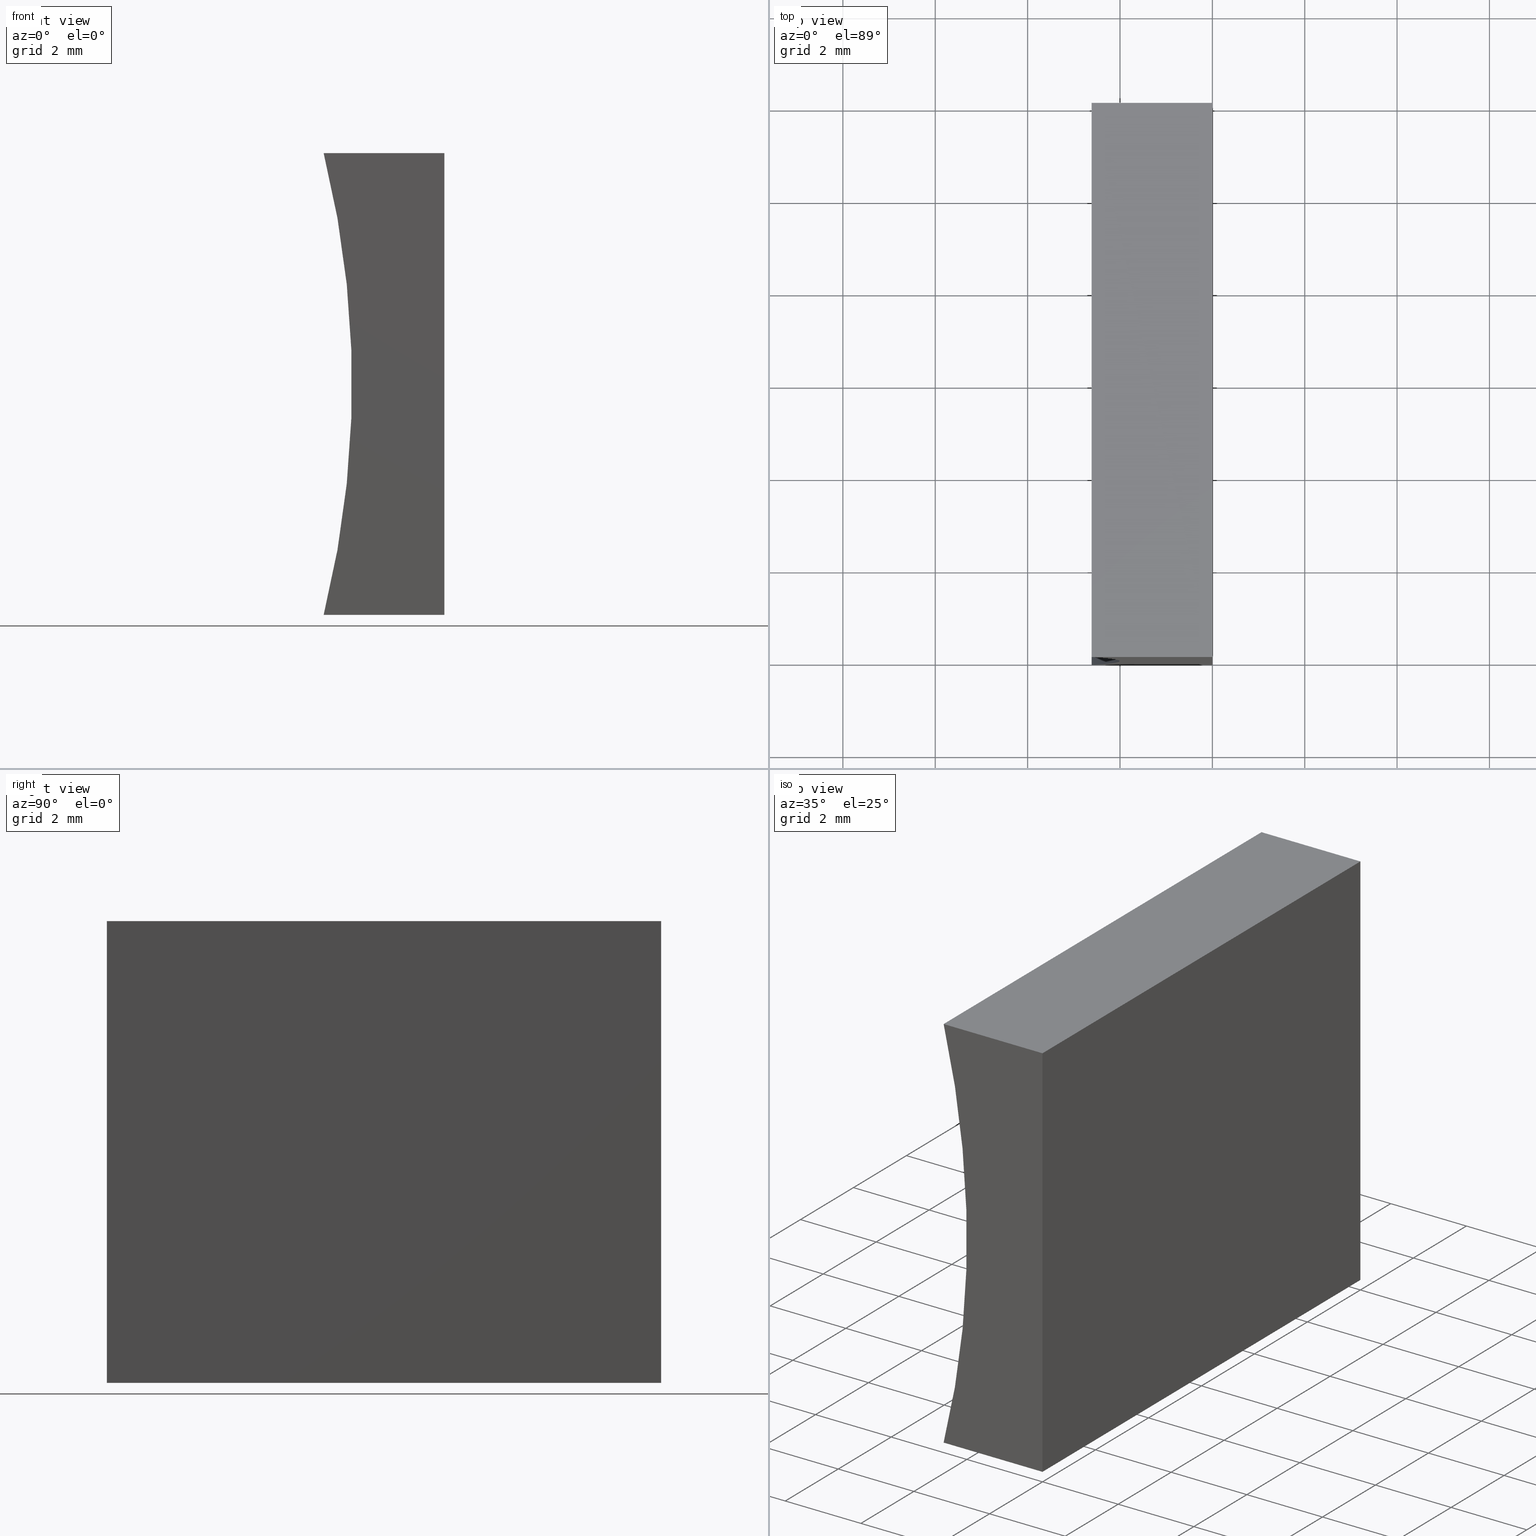
[diagram: canonical four-view strip — front | top / right | iso, engineering-drawing reading convention]
A machine part, canonical four-view strip (front | top / right | iso — engineering-drawing reading convention). The complete STEP part file that produces these views, byte-faithful:
ISO-10303-21;
HEADER;
FILE_DESCRIPTION (( 'STEP AP214' ),
    '1' );
FILE_NAME ('155341.STEP',
    '2019-06-28T02:17:58',
    ( 'user' ),
    ( '΢���й�' ),
    'SwSTEP 2.0',
    'SolidWorks 2016',
    '' );
FILE_SCHEMA (( 'AUTOMOTIVE_DESIGN' ));
ENDSEC;

DATA;
#1 = VECTOR ( 'NONE', #90, 1000.000000000000000 ) ;
#2 = PRODUCT_RELATED_PRODUCT_CATEGORY ( 'part', '', ( #79 ) ) ;
#3 = EDGE_CURVE ( 'NONE', #128, #109, #169, .T. ) ;
#4 = CARTESIAN_POINT ( 'NONE',  ( 6.123233995736766300E-016, 12.00000000000000000, 10.00000000000000000 ) ) ;
#5 = DIRECTION ( 'NONE',  ( -0.0000000000000000000, -1.000000000000000000, -0.0000000000000000000 ) ) ;
#6 = LINE ( 'NONE', #54, #62 ) ;
#7 = SURFACE_STYLE_USAGE ( .BOTH. , #195 ) ;
#8 =( NAMED_UNIT ( * ) PLANE_ANGLE_UNIT ( ) SI_UNIT ( $, .RADIAN. ) );
#9 = EDGE_LOOP ( 'NONE', ( #35, #116, #108, #13 ) ) ;
#10 =( LENGTH_UNIT ( ) NAMED_UNIT ( * ) SI_UNIT ( .MILLI., .METRE. ) );
#11 = ADVANCED_FACE ( 'NONE', ( #166 ), #204, .F. ) ;
#12 = VECTOR ( 'NONE', #73, 1000.000000000000000 ) ;
#13 = ORIENTED_EDGE ( 'NONE', *, *, #88, .F. ) ;
#14 = ORIENTED_EDGE ( 'NONE', *, *, #136, .T. ) ;
#15 = CARTESIAN_POINT ( 'NONE',  ( 6.123233995736766300E-016, 12.00000000000000000, 10.00000000000000000 ) ) ;
#16 = UNCERTAINTY_MEASURE_WITH_UNIT (LENGTH_MEASURE( 1.000000000000000100E-005 ), #115, 'distance_accuracy_value', 'NONE');
#17 = CARTESIAN_POINT ( 'NONE',  ( 0.0000000000000000000, 12.00000000000000000, 0.0000000000000000000 ) ) ;
#18 = VECTOR ( 'NONE', #194, 1000.000000000000000 ) ;
#19 = PRODUCT_CONTEXT ( 'NONE', #60, 'mechanical' ) ;
#20 = SURFACE_STYLE_USAGE ( .BOTH. , #24 ) ;
#21 = AXIS2_PLACEMENT_3D ( 'NONE', #112, #31, #145 ) ;
#22 = VECTOR ( 'NONE', #161, 1000.000000000000000 ) ;
#23 = ADVANCED_FACE ( 'NONE', ( #37 ), #110, .F. ) ;
#24 = SURFACE_SIDE_STYLE ('',( #104 ) ) ;
#25 = ORIENTED_EDGE ( 'NONE', *, *, #93, .F. ) ;
#26 = VECTOR ( 'NONE', #181, 1000.000000000000000 ) ;
#27 = MECHANICAL_DESIGN_GEOMETRIC_PRESENTATION_REPRESENTATION (  '', ( #148 ), #36 ) ;
#28 = CARTESIAN_POINT ( 'NONE',  ( 6.123233995736766300E-016, 0.0000000000000000000, 10.00000000000000000 ) ) ;
#29 = DIRECTION ( 'NONE',  ( 0.0000000000000000000, 0.0000000000000000000, 1.000000000000000000 ) ) ;
#30 = EDGE_CURVE ( 'NONE', #64, #59, #121, .T. ) ;
#31 = DIRECTION ( 'NONE',  ( 0.0000000000000000000, -0.0000000000000000000, 1.000000000000000000 ) ) ;
#32 = ORIENTED_EDGE ( 'NONE', *, *, #114, .T. ) ;
#33 = DIRECTION ( 'NONE',  ( -1.000000000000000000, 0.0000000000000000000, 0.0000000000000000000 ) ) ;
#34 = CARTESIAN_POINT ( 'NONE',  ( 0.0000000000000000000, 12.00000000000000000, 0.0000000000000000000 ) ) ;
#35 = ORIENTED_EDGE ( 'NONE', *, *, #30, .F. ) ;
#36 =( GEOMETRIC_REPRESENTATION_CONTEXT ( 3 ) GLOBAL_UNCERTAINTY_ASSIGNED_CONTEXT ( ( #190 ) ) GLOBAL_UNIT_ASSIGNED_CONTEXT ( ( #130, #77, #200 ) ) REPRESENTATION_CONTEXT ( 'NONE', 'WORKASPACE' ) );
#37 = FACE_OUTER_BOUND ( 'NONE', #179, .T. ) ;
#38 = ORIENTED_EDGE ( 'NONE', *, *, #58, .T. ) ;
#39 = SURFACE_STYLE_FILL_AREA ( #144 ) ;
#40 = ORIENTED_EDGE ( 'NONE', *, *, #107, .T. ) ;
#41 = AXIS2_PLACEMENT_3D ( 'NONE', #132, #184, #56 ) ;
#42 = CARTESIAN_POINT ( 'NONE',  ( 0.0000000000000000000, 0.0000000000000000000, 0.0000000000000000000 ) ) ;
#43 = ORIENTED_EDGE ( 'NONE', *, *, #188, .F. ) ;
#44 = AXIS2_PLACEMENT_3D ( 'NONE', #163, #99, #101 ) ;
#45 = DIRECTION ( 'NONE',  ( 0.0000000000000000000, 1.000000000000000000, 0.0000000000000000000 ) ) ;
#46 = LINE ( 'NONE', #57, #26 ) ;
#47 = DIRECTION ( 'NONE',  ( 1.000000000000000000, -0.0000000000000000000, -0.0000000000000000000 ) ) ;
#48 = DIRECTION ( 'NONE',  ( 1.000000000000000000, -0.0000000000000000000, -0.0000000000000000000 ) ) ;
#49 = ORIENTED_EDGE ( 'NONE', *, *, #122, .F. ) ;
#50 = CYLINDRICAL_SURFACE ( 'NONE', #44, 20.68000000000000000 ) ;
#51 = LINE ( 'NONE', #164, #1 ) ;
#52 = EDGE_CURVE ( 'NONE', #111, #64, #197, .T. ) ;
#53 = SHAPE_DEFINITION_REPRESENTATION ( #155, #126 ) ;
#54 = CARTESIAN_POINT ( 'NONE',  ( 6.123233995736766300E-016, 12.00000000000000000, 10.00000000000000000 ) ) ;
#55 = PLANE ( 'NONE',  #21 ) ;
#56 = DIRECTION ( 'NONE',  ( 0.0000000000000000000, 0.0000000000000000000, 1.000000000000000000 ) ) ;
#57 = CARTESIAN_POINT ( 'NONE',  ( 6.123233995736766300E-016, 12.00000000000000000, 10.00000000000000000 ) ) ;
#58 = EDGE_CURVE ( 'NONE', #109, #64, #85, .T. ) ;
#59 = VERTEX_POINT ( 'NONE', #196 ) ;
#60 = APPLICATION_CONTEXT ( 'automotive_design' ) ;
#61 = VECTOR ( 'NONE', #33, 1000.000000000000000 ) ;
#62 = VECTOR ( 'NONE', #47, 1000.000000000000000 ) ;
#63 = AXIS2_PLACEMENT_3D ( 'NONE', #177, #5, #29 ) ;
#64 = VERTEX_POINT ( 'NONE', #78 ) ;
#65 = LINE ( 'NONE', #34, #12 ) ;
#66 = ORIENTED_EDGE ( 'NONE', *, *, #136, .F. ) ;
#67 = DIRECTION ( 'NONE',  ( 0.0000000000000000000, -0.0000000000000000000, 1.000000000000000000 ) ) ;
#68 = AXIS2_PLACEMENT_3D ( 'NONE', #198, #193, #67 ) ;
#69 = CARTESIAN_POINT ( 'NONE',  ( 0.0000000000000000000, 12.00000000000000000, 0.0000000000000000000 ) ) ;
#70 = DIRECTION ( 'NONE',  ( -1.000000000000000000, 0.0000000000000000000, -0.0000000000000000000 ) ) ;
#71 = VECTOR ( 'NONE', #48, 1000.000000000000000 ) ;
#72 = FACE_OUTER_BOUND ( 'NONE', #146, .T. ) ;
#73 = DIRECTION ( 'NONE',  ( -6.123233995736766000E-017, -0.0000000000000000000, -1.000000000000000000 ) ) ;
#74 = EDGE_CURVE ( 'NONE', #186, #128, #51, .T. ) ;
#75 = CARTESIAN_POINT ( 'NONE',  ( 0.0000000000000000000, 12.00000000000000000, 0.0000000000000000000 ) ) ;
#76 = ORIENTED_EDGE ( 'NONE', *, *, #107, .F. ) ;
#77 =( NAMED_UNIT ( * ) PLANE_ANGLE_UNIT ( ) SI_UNIT ( $, .RADIAN. ) );
#78 = CARTESIAN_POINT ( 'NONE',  ( 0.0000000000000000000, 0.0000000000000000000, 0.0000000000000000000 ) ) ;
#79 = PRODUCT ( '155341', '155341', '', ( #19 ) ) ;
#80 = ADVANCED_FACE ( 'NONE', ( #124 ), #50, .F. ) ;
#81 = DIRECTION ( 'NONE',  ( -1.000000000000000000, 0.0000000000000000000, 6.123233995736766000E-017 ) ) ;
#82 = ORIENTED_EDGE ( 'NONE', *, *, #3, .T. ) ;
#83 = FILL_AREA_STYLE_COLOUR ( '', #141 ) ;
#84 = VERTEX_POINT ( 'NONE', #92 ) ;
#85 = LINE ( 'NONE', #42, #174 ) ;
#86 =( GEOMETRIC_REPRESENTATION_CONTEXT ( 3 ) GLOBAL_UNCERTAINTY_ASSIGNED_CONTEXT ( ( #160 ) ) GLOBAL_UNIT_ASSIGNED_CONTEXT ( ( #10, #97, #117 ) ) REPRESENTATION_CONTEXT ( 'NONE', 'WORKASPACE' ) );
#87 = FACE_OUTER_BOUND ( 'NONE', #9, .T. ) ;
#88 = EDGE_CURVE ( 'NONE', #59, #128, #134, .T. ) ;
#89 = ORIENTED_EDGE ( 'NONE', *, *, #52, .F. ) ;
#90 = DIRECTION ( 'NONE',  ( -0.0000000000000000000, -1.000000000000000000, -0.0000000000000000000 ) ) ;
#91 = CARTESIAN_POINT ( 'NONE',  ( 0.0000000000000000000, 0.0000000000000000000, 0.0000000000000000000 ) ) ;
#92 = CARTESIAN_POINT ( 'NONE',  ( -2.613550388770813400, 12.00000000000000000, 0.0000000000000000000 ) ) ;
#93 = EDGE_CURVE ( 'NONE', #111, #84, #129, .T. ) ;
#94 = DIRECTION ( 'NONE',  ( 6.123233995736766000E-017, 0.0000000000000000000, 1.000000000000000000 ) ) ;
#95 = ORIENTED_EDGE ( 'NONE', *, *, #88, .T. ) ;
#96 = DIRECTION ( 'NONE',  ( 1.000000000000000000, 0.0000000000000000000, 0.0000000000000000000 ) ) ;
#97 =( NAMED_UNIT ( * ) PLANE_ANGLE_UNIT ( ) SI_UNIT ( $, .RADIAN. ) );
#98 = ADVANCED_FACE ( 'NONE', ( #72 ), #55, .F. ) ;
#99 = DIRECTION ( 'NONE',  ( -0.0000000000000000000, -1.000000000000000000, -0.0000000000000000000 ) ) ;
#100 = AXIS2_PLACEMENT_3D ( 'NONE', #180, #45, #125 ) ;
#101 = DIRECTION ( 'NONE',  ( 0.0000000000000000000, 0.0000000000000000000, -1.000000000000000000 ) ) ;
#102 = DIRECTION ( 'NONE',  ( 0.0000000000000000000, 0.0000000000000000000, -1.000000000000000000 ) ) ;
#103 = EDGE_LOOP ( 'NONE', ( #82, #157, #43, #133 ) ) ;
#104 = SURFACE_STYLE_FILL_AREA ( #203 ) ;
#105 = ORIENTED_EDGE ( 'NONE', *, *, #188, .T. ) ;
#106 = MANIFOLD_SOLID_BREP ( '͹̨-����1', #149 ) ;
#107 = EDGE_CURVE ( 'NONE', #84, #59, #172, .T. ) ;
#108 = ORIENTED_EDGE ( 'NONE', *, *, #3, .F. ) ;
#109 = VERTEX_POINT ( 'NONE', #28 ) ;
#110 = PLANE ( 'NONE',  #140 ) ;
#111 = VERTEX_POINT ( 'NONE', #75 ) ;
#112 = CARTESIAN_POINT ( 'NONE',  ( 0.0000000000000000000, 12.00000000000000000, 0.0000000000000000000 ) ) ;
#113 = APPLICATION_CONTEXT ( 'automotive_design' ) ;
#114 = EDGE_CURVE ( 'NONE', #173, #109, #46, .T. ) ;
#115 =( LENGTH_UNIT ( ) NAMED_UNIT ( * ) SI_UNIT ( .MILLI., .METRE. ) );
#116 = ORIENTED_EDGE ( 'NONE', *, *, #58, .F. ) ;
#117 =( NAMED_UNIT ( * ) SI_UNIT ( $, .STERADIAN. ) SOLID_ANGLE_UNIT ( ) );
#118 = CARTESIAN_POINT ( 'NONE',  ( 6.123233995736766300E-016, 0.0000000000000000000, 10.00000000000000000 ) ) ;
#119 = VECTOR ( 'NONE', #165, 1000.000000000000000 ) ;
#120 = STYLED_ITEM ( 'NONE', ( #158 ), #126 ) ;
#121 = LINE ( 'NONE', #91, #61 ) ;
#122 = EDGE_CURVE ( 'NONE', #84, #186, #154, .T. ) ;
#123 = ORIENTED_EDGE ( 'NONE', *, *, #74, .F. ) ;
#124 = FACE_OUTER_BOUND ( 'NONE', #189, .T. ) ;
#125 = DIRECTION ( 'NONE',  ( 0.0000000000000000000, -0.0000000000000000000, 1.000000000000000000 ) ) ;
#126 = ADVANCED_BREP_SHAPE_REPRESENTATION ( '155341', ( #106, #175 ), #86 ) ;
#127 = CARTESIAN_POINT ( 'NONE',  ( -2.613550388770809400, 12.00000000000000000, 10.00000000000000000 ) ) ;
#128 = VERTEX_POINT ( 'NONE', #147 ) ;
#129 = LINE ( 'NONE', #69, #22 ) ;
#130 =( LENGTH_UNIT ( ) NAMED_UNIT ( * ) SI_UNIT ( .MILLI., .METRE. ) );
#131 = CARTESIAN_POINT ( 'NONE',  ( -2.613550388770813400, 12.00000000000000000, 0.0000000000000000000 ) ) ;
#132 = CARTESIAN_POINT ( 'NONE',  ( -22.68000000000000000, 12.00000000000000000, 5.000000000000001800 ) ) ;
#133 = ORIENTED_EDGE ( 'NONE', *, *, #74, .T. ) ;
#134 = CIRCLE ( 'NONE', #63, 20.68000000000000000 ) ;
#135 = APPLICATION_PROTOCOL_DEFINITION ( 'draft international standard', 'automotive_design', 1998, #60 ) ;
#136 = EDGE_CURVE ( 'NONE', #173, #111, #65, .T. ) ;
#137 = CARTESIAN_POINT ( 'NONE',  ( 0.0000000000000000000, 0.0000000000000000000, 0.0000000000000000000 ) ) ;
#138 = PRESENTATION_LAYER_ASSIGNMENT (  '', '', ( #120 ) ) ;
#139 = ORIENTED_EDGE ( 'NONE', *, *, #93, .T. ) ;
#140 = AXIS2_PLACEMENT_3D ( 'NONE', #162, #81, #94 ) ;
#141 = COLOUR_RGB ( '',1.000000000000000000, 1.000000000000000000, 1.000000000000000000 ) ;
#142 = MECHANICAL_DESIGN_GEOMETRIC_PRESENTATION_REPRESENTATION (  '', ( #120 ), #156 ) ;
#143 = FILL_AREA_STYLE_COLOUR ( '', #150 ) ;
#144 = FILL_AREA_STYLE ('',( #143 ) ) ;
#145 = DIRECTION ( 'NONE',  ( 1.000000000000000000, 0.0000000000000000000, -0.0000000000000000000 ) ) ;
#146 = EDGE_LOOP ( 'NONE', ( #159, #76, #25, #153 ) ) ;
#147 = CARTESIAN_POINT ( 'NONE',  ( -2.613550388770809400, 0.0000000000000000000, 10.00000000000000000 ) ) ;
#148 = STYLED_ITEM ( 'NONE', ( #202 ), #106 ) ;
#149 = CLOSED_SHELL ( 'NONE', ( #98, #80, #11, #23, #152, #168 ) ) ;
#150 = COLOUR_RGB ( '',1.000000000000000000, 1.000000000000000000, 1.000000000000000000 ) ;
#151 = PLANE ( 'NONE',  #68 ) ;
#152 = ADVANCED_FACE ( 'NONE', ( #170 ), #151, .T. ) ;
#153 = ORIENTED_EDGE ( 'NONE', *, *, #52, .T. ) ;
#154 = CIRCLE ( 'NONE', #41, 20.68000000000000000 ) ;
#155 = PRODUCT_DEFINITION_SHAPE ( 'NONE', 'NONE',  #187 ) ;
#156 =( GEOMETRIC_REPRESENTATION_CONTEXT ( 3 ) GLOBAL_UNCERTAINTY_ASSIGNED_CONTEXT ( ( #16 ) ) GLOBAL_UNIT_ASSIGNED_CONTEXT ( ( #115, #8, #182 ) ) REPRESENTATION_CONTEXT ( 'NONE', 'WORKASPACE' ) );
#157 = ORIENTED_EDGE ( 'NONE', *, *, #114, .F. ) ;
#158 = PRESENTATION_STYLE_ASSIGNMENT (( #20 ) ) ;
#159 = ORIENTED_EDGE ( 'NONE', *, *, #30, .T. ) ;
#160 = UNCERTAINTY_MEASURE_WITH_UNIT (LENGTH_MEASURE( 1.000000000000000100E-005 ), #10, 'distance_accuracy_value', 'NONE');
#161 = DIRECTION ( 'NONE',  ( -1.000000000000000000, 0.0000000000000000000, 0.0000000000000000000 ) ) ;
#162 = CARTESIAN_POINT ( 'NONE',  ( 0.0000000000000000000, 12.00000000000000000, 0.0000000000000000000 ) ) ;
#163 = CARTESIAN_POINT ( 'NONE',  ( -22.68000000000000000, 12.00000000000000000, 5.000000000000001800 ) ) ;
#164 = CARTESIAN_POINT ( 'NONE',  ( -2.613550388770809400, 12.00000000000000000, 10.00000000000000000 ) ) ;
#165 = DIRECTION ( 'NONE',  ( -0.0000000000000000000, -1.000000000000000000, -0.0000000000000000000 ) ) ;
#166 = FACE_OUTER_BOUND ( 'NONE', #103, .T. ) ;
#167 = DIRECTION ( 'NONE',  ( 0.0000000000000000000, 0.0000000000000000000, 1.000000000000000000 ) ) ;
#168 = ADVANCED_FACE ( 'NONE', ( #87 ), #176, .F. ) ;
#169 = LINE ( 'NONE', #118, #71 ) ;
#170 = FACE_OUTER_BOUND ( 'NONE', #192, .T. ) ;
#171 = ORIENTED_EDGE ( 'NONE', *, *, #122, .T. ) ;
#172 = LINE ( 'NONE', #131, #119 ) ;
#173 = VERTEX_POINT ( 'NONE', #4 ) ;
#174 = VECTOR ( 'NONE', #178, 1000.000000000000000 ) ;
#175 = AXIS2_PLACEMENT_3D ( 'NONE', #137, #167, #96 ) ;
#176 = PLANE ( 'NONE',  #100 ) ;
#177 = CARTESIAN_POINT ( 'NONE',  ( -22.68000000000000000, 0.0000000000000000000, 5.000000000000001800 ) ) ;
#178 = DIRECTION ( 'NONE',  ( -6.123233995736766000E-017, -0.0000000000000000000, -1.000000000000000000 ) ) ;
#179 = EDGE_LOOP ( 'NONE', ( #38, #89, #66, #32 ) ) ;
#180 = CARTESIAN_POINT ( 'NONE',  ( -22.68000000000000000, 0.0000000000000000000, 5.000000000000001800 ) ) ;
#181 = DIRECTION ( 'NONE',  ( -0.0000000000000000000, -1.000000000000000000, -0.0000000000000000000 ) ) ;
#182 =( NAMED_UNIT ( * ) SI_UNIT ( $, .STERADIAN. ) SOLID_ANGLE_UNIT ( ) );
#183 = PRODUCT_DEFINITION_CONTEXT ( 'detailed design', #113, 'design' ) ;
#184 = DIRECTION ( 'NONE',  ( -0.0000000000000000000, -1.000000000000000000, -0.0000000000000000000 ) ) ;
#185 = PRESENTATION_LAYER_ASSIGNMENT (  '', '', ( #148 ) ) ;
#186 = VERTEX_POINT ( 'NONE', #127 ) ;
#187 = PRODUCT_DEFINITION ( 'δ֪', '', #201, #183 ) ;
#188 = EDGE_CURVE ( 'NONE', #186, #173, #6, .T. ) ;
#189 = EDGE_LOOP ( 'NONE', ( #95, #123, #49, #40 ) ) ;
#190 = UNCERTAINTY_MEASURE_WITH_UNIT (LENGTH_MEASURE( 1.000000000000000100E-005 ), #130, 'distance_accuracy_value', 'NONE');
#191 = AXIS2_PLACEMENT_3D ( 'NONE', #15, #102, #70 ) ;
#192 = EDGE_LOOP ( 'NONE', ( #139, #171, #105, #14 ) ) ;
#193 = DIRECTION ( 'NONE',  ( 0.0000000000000000000, 1.000000000000000000, 0.0000000000000000000 ) ) ;
#194 = DIRECTION ( 'NONE',  ( -0.0000000000000000000, -1.000000000000000000, -0.0000000000000000000 ) ) ;
#195 = SURFACE_SIDE_STYLE ('',( #39 ) ) ;
#196 = CARTESIAN_POINT ( 'NONE',  ( -2.613550388770813400, 0.0000000000000000000, 0.0000000000000000000 ) ) ;
#197 = LINE ( 'NONE', #17, #18 ) ;
#198 = CARTESIAN_POINT ( 'NONE',  ( -22.68000000000000000, 12.00000000000000000, 5.000000000000001800 ) ) ;
#199 = APPLICATION_PROTOCOL_DEFINITION ( 'draft international standard', 'automotive_design', 1998, #113 ) ;
#200 =( NAMED_UNIT ( * ) SI_UNIT ( $, .STERADIAN. ) SOLID_ANGLE_UNIT ( ) );
#201 = PRODUCT_DEFINITION_FORMATION_WITH_SPECIFIED_SOURCE ( '�κ�', '', #79, .NOT_KNOWN. ) ;
#202 = PRESENTATION_STYLE_ASSIGNMENT (( #7 ) ) ;
#203 = FILL_AREA_STYLE ('',( #83 ) ) ;
#204 = PLANE ( 'NONE',  #191 ) ;
ENDSEC;
END-ISO-10303-21;
